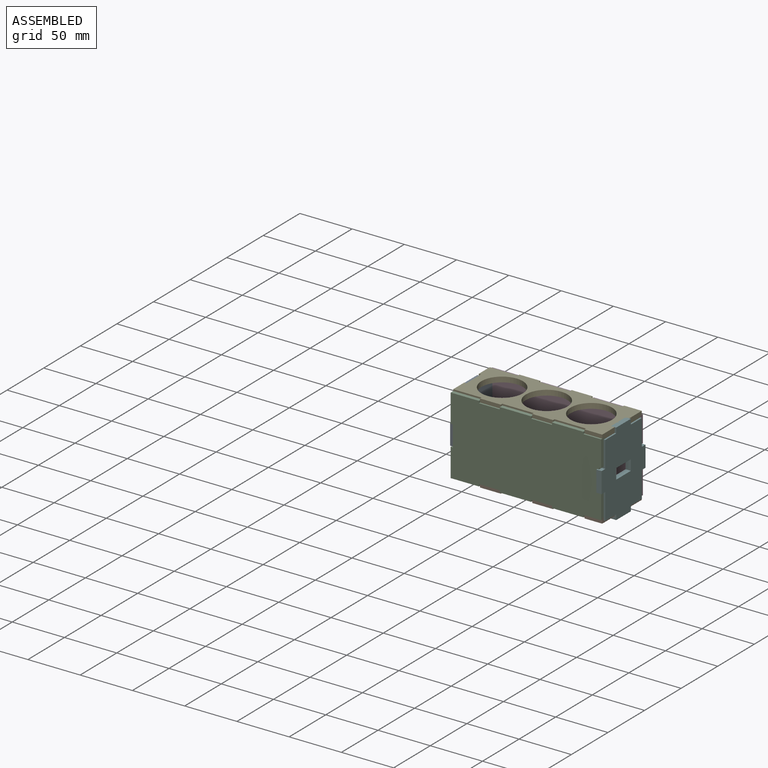
[diagram: assembled view]
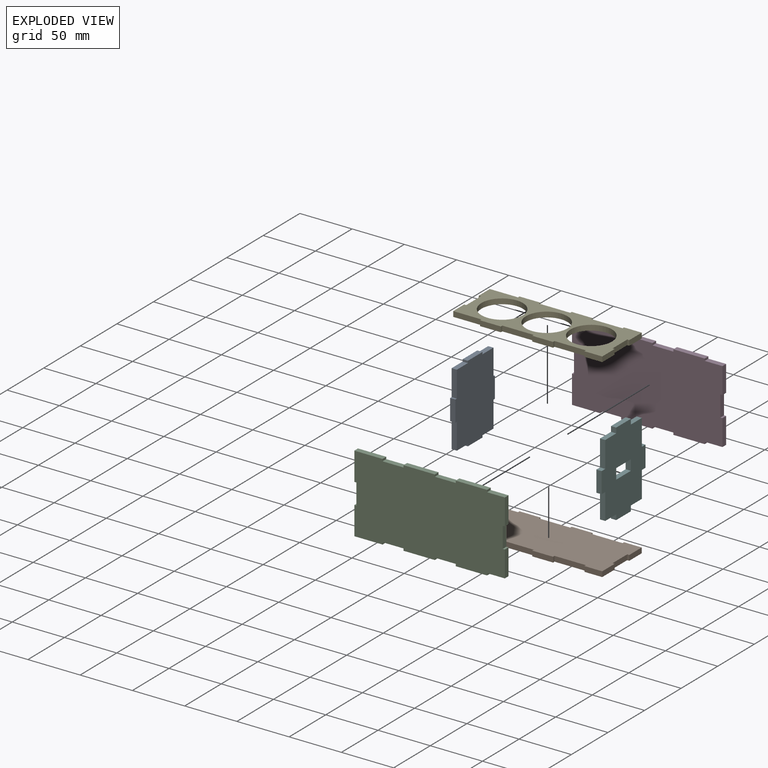
[diagram: exploded view]
GUIDED TOUR — MATED ASSEMBLY (Onshape document 838ae28858e6cbb6a71a05e3, AutoMate assembly 838ae28858e6cbb6a71a05e3_f574cbf1da23f72e12325b11_8fa5516414d45870af5f2d03_default)

This assembly has 6 components, labeled P0..P5 below (a component is one placed occurrence of a part; the same part can appear more than once), held together by 5 mates. A mate is a constraint between two components; its type names the relative motion it leaves free:
  FASTENED — locks the two components together rigidly (no relative motion).
Axis/direction vectors are unit vectors and 'through' points are millimeter coordinates, both in the assembly's world frame.

MATES
  1. FASTENED "Fastened 2": P3 <-> P4, direction (1.000, 0.000, 0.000) through (-182.64, 81.75, 118.68) mm
  2. FASTENED "Fastened 4": P0 <-> P3, direction (0.000, 0.000, -1.000) through (-208.64, 81.75, 72.68) mm
  3. FASTENED "Fastened 5": P5 <-> P4, direction (0.000, 1.000, 0.000) through (-66.64, 65.75, 118.68) mm
  4. FASTENED "Fastened 1": P4 <-> P2, direction (-1.000, 0.000, 0.000) through (-182.64, 29.75, 118.68) mm
  5. FASTENED "Fastened 3": P1 <-> P3, direction (-1.000, 0.000, 0.000) through (-182.64, 81.75, 46.68) mm

ASSEMBLY ORDER
  1. P5 — the base component [order verified]
  2. P0 [order verified]
  3. P1 [order verified]
  4. P3 [order verified]
  5. P2 [order verified]
  6. P4 [order verified]
Order-tag legend:
  [order verified] — this step's position reverses a verified removal order: the component was checked to insert without passing through the ones already placed.

Of the 6 components, 6 carry the full construction recipe — the FeatureScript program that regenerates the part's solid from scratch; the rest are supplied as boundary geometry only.
Each toured component is shown spotlighted twice — in the assembled view, then in the exploded view, where a leader line traces a displaced component back to its assembled socket (saturated green if recipe-attached, orange if geometry-only; every other component desaturated gray) — followed by its recipe or geometry summary and the mates that hold it.
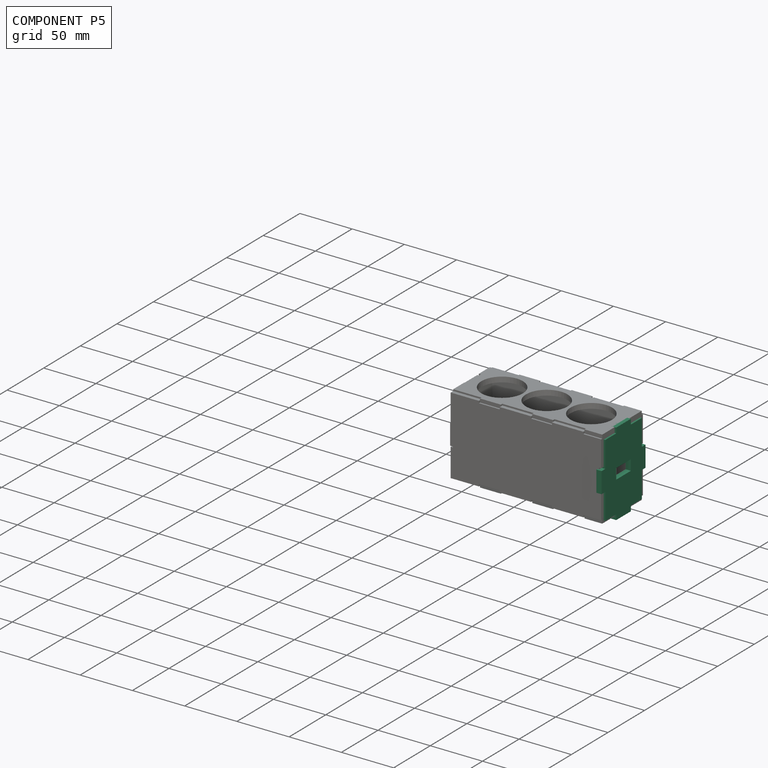
[diagram: component P5 — assembled]
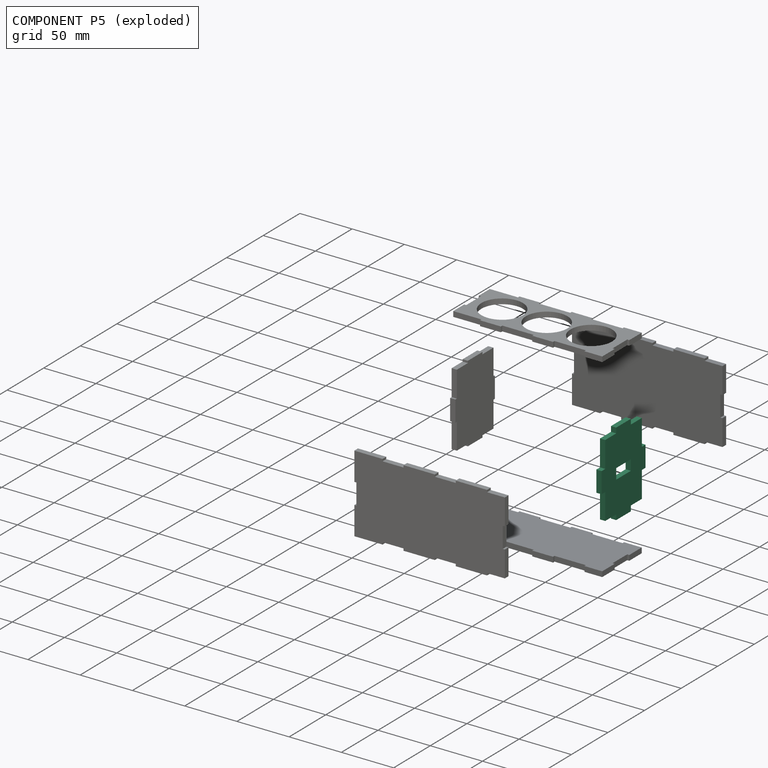
[diagram: component P5 — exploded]
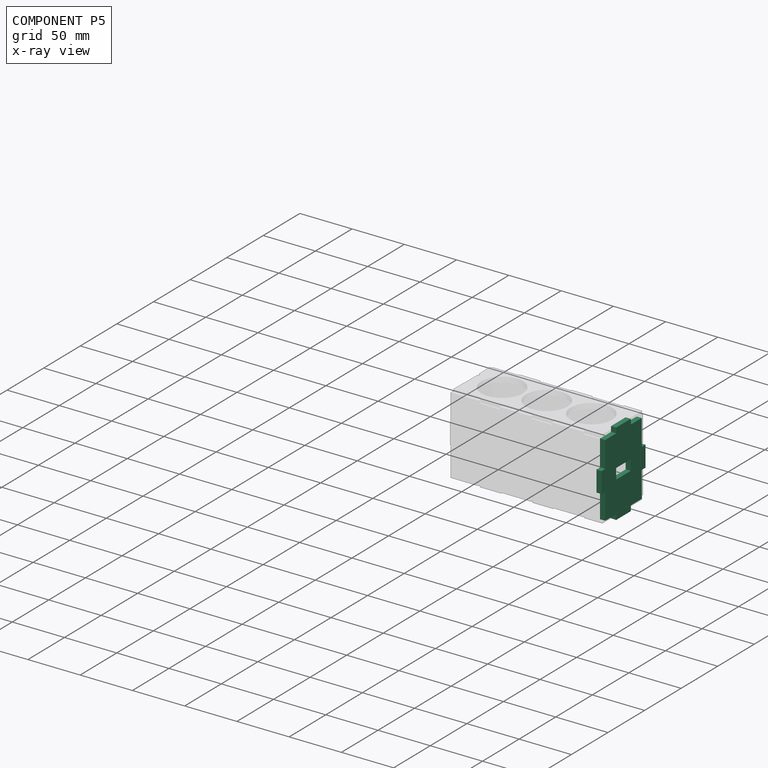
[diagram: component P5 — x-ray view]
COMPONENT P5 — recipe-attached (CADFS 00856404, mesh-verified: the recipe's output STEP matches this component's geometry to below the mesh-comparison resolution (tessellation chordal tolerance ~0.15 mm)).
Held by: FASTENED mate "Fastened 5" to P4.
Construction recipe (FeatureScript — the CAD program that rebuilds this solid; sketch coordinates are in the units given by the * unit suffixes, e.g. mm):

FeatureScript 1511;
import(path : "onshape/std/geometry.fs", version : "1511.0");
import(path : "onshape/std/common.fs", version : "1511.0");
const mm = millimeter;
const VERTEX = EntityType.VERTEX;
const EDGE = EntityType.EDGE;
const FACE = EntityType.FACE;
const BODY = EntityType.BODY;
function v(x, y){return vector(x, y);}
function OD(order){return orderDisambiguation(order);}
function OSD(set){return originalSetDisambiguation(set);}
function TD(topology){return topologyDisambiguation(topology);}
function TDD(query){return trueDependencyDisambiguation(query);}
function sQuery(a, b, c) {return sketchEntityQuery(a, b, c);}

annotation { "Feature Type Name" : "Feature", "Feature Type Description" : "" }
export const myFeature = defineFeature(function(context is Context, id is Id, definition is map)
    precondition{}
    {
        {
            var Q0;
            Q0=qCreatedBy(makeId("Front.planeOp"),FACE);
            var sketch = newSketch(context, id + "F0", { "sketchPlane" : qUnion([Q0])});
            skLineSegment(sketch, "E0", {"start": v(0, 0) * mm, "end": v(0, 25) * mm});
            skLineSegment(sketch, "E1", {"start": v(0, 25) * mm, "end": v(-5, 25) * mm});
            skLineSegment(sketch, "E2", {"start": v(-5, 25) * mm, "end": v(-5, 45) * mm});
            skLineSegment(sketch, "E3", {"start": v(-5, 45) * mm, "end": v(0, 45) * mm});
            skLineSegment(sketch, "E4", {"start": v(0, 45) * mm, "end": v(0, 70) * mm});
            skLineSegment(sketch, "E5", {"start": v(0, 70) * mm, "end": v(15, 70) * mm});
            skLineSegment(sketch, "E6", {"start": v(15, 70) * mm, "end": v(15, 75) * mm});
            skLineSegment(sketch, "E7", {"start": v(15, 75) * mm, "end": v(35, 75) * mm});
            skLineSegment(sketch, "E8", {"start": v(35, 75) * mm, "end": v(35, 70) * mm});
            skLineSegment(sketch, "E9", {"start": v(35, 70) * mm, "end": v(50, 70) * mm});
            skLineSegment(sketch, "E10", {"start": v(50, 70) * mm, "end": v(50, 45) * mm});
            skLineSegment(sketch, "E11", {"start": v(50, 45) * mm, "end": v(55, 45) * mm});
            skLineSegment(sketch, "E12", {"start": v(55, 45) * mm, "end": v(55, 25) * mm});
            skLineSegment(sketch, "E13", {"start": v(55, 25) * mm, "end": v(50, 25) * mm});
            skLineSegment(sketch, "E14", {"start": v(50, 25) * mm, "end": v(50, 0) * mm});
            skLineSegment(sketch, "E15", {"start": v(50, 0) * mm, "end": v(35, 0) * mm});
            skLineSegment(sketch, "E16", {"start": v(35, 0) * mm, "end": v(35, -5) * mm});
            skLineSegment(sketch, "E17", {"start": v(35, -5) * mm, "end": v(15, -5) * mm});
            skLineSegment(sketch, "E18", {"start": v(15, -5) * mm, "end": v(15, 0) * mm});
            skLineSegment(sketch, "E19", {"start": v(15, 0) * mm, "end": v(0, 0) * mm});
            skSolve(sketch);
        }
        {
            var Q0;
            Q0=makeQuery(id+"F0.imprint","IMPRINT",FACE,{"disambiguationData":[TD([[makeQuery(id+"F0.imprint","IMPRINT",EDGE,{"derivedFrom":sQuery(id+"F0.wireOp",EDGE,"E0")}),-1.0]])]});
            extrude(context, id + "F1", {"entities" : qUnion([Q0]), "depth" : 5 * mm});
        }
        {
            var Q0;
            Q0=makeQuery(id+"F1.opExtrude","CAP_FACE",FACE,{"disambiguationData":[OSD([sQuery(id+"F0.wireOp",EDGE,"E0"),sQuery(id+"F0.wireOp",EDGE,"E1"),sQuery(id+"F0.wireOp",EDGE,"E2"),sQuery(id+"F0.wireOp",EDGE,"E3"),sQuery(id+"F0.wireOp",EDGE,"E4"),sQuery(id+"F0.wireOp",EDGE,"E5"),sQuery(id+"F0.wireOp",EDGE,"E6"),sQuery(id+"F0.wireOp",EDGE,"E7"),sQuery(id+"F0.wireOp",EDGE,"E8"),sQuery(id+"F0.wireOp",EDGE,"E9"),sQuery(id+"F0.wireOp",EDGE,"E10"),sQuery(id+"F0.wireOp",EDGE,"E11"),sQuery(id+"F0.wireOp",EDGE,"E12"),sQuery(id+"F0.wireOp",EDGE,"E13"),sQuery(id+"F0.wireOp",EDGE,"E14"),sQuery(id+"F0.wireOp",EDGE,"E15"),sQuery(id+"F0.wireOp",EDGE,"E16"),sQuery(id+"F0.wireOp",EDGE,"E17"),sQuery(id+"F0.wireOp",EDGE,"E18"),sQuery(id+"F0.wireOp",EDGE,"E19")])],"isStart":false});
            var sketch = newSketch(context, id + "F2", { "sketchPlane" : qUnion([Q0])});
            skLineSegment(sketch, "E20.bottom", {"start": v(15, 40) * mm, "end": v(35, 40) * mm});
            skLineSegment(sketch, "E20.top", {"start": v(15, 30) * mm, "end": v(35, 30) * mm});
            skLineSegment(sketch, "E20.left", {"start": v(15, 40) * mm, "end": v(15, 30) * mm});
            skLineSegment(sketch, "E20.right", {"start": v(35, 40) * mm, "end": v(35, 30) * mm});
            skSolve(sketch);
        }
        {
            var Q0;
            Q0=makeQuery(id+"F2.imprint","IMPRINT",FACE,{"disambiguationData":[TD([[makeQuery(id+"F2.imprint","IMPRINT",EDGE,{"derivedFrom":sQuery(id+"F2.wireOp",EDGE,"E20.bottom")}),-1.0]])]});
            extrude(context, id + "F3", {"entities" : qUnion([Q0]), "operationType" : NewBodyOperationType.REMOVE, "oppositeDirection" : true, "depth" : 25 * mm});
        }
    });
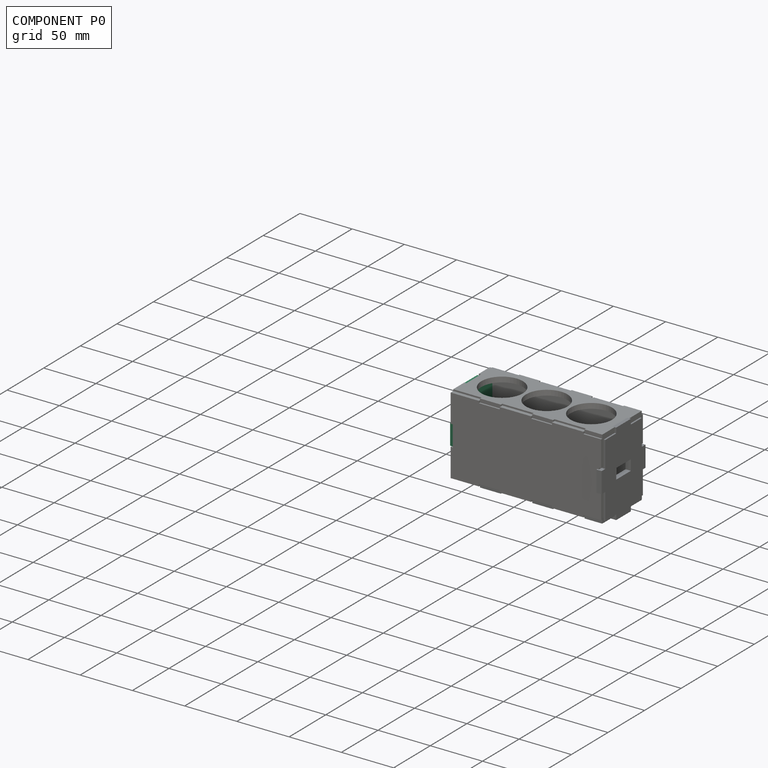
[diagram: component P0 — assembled]
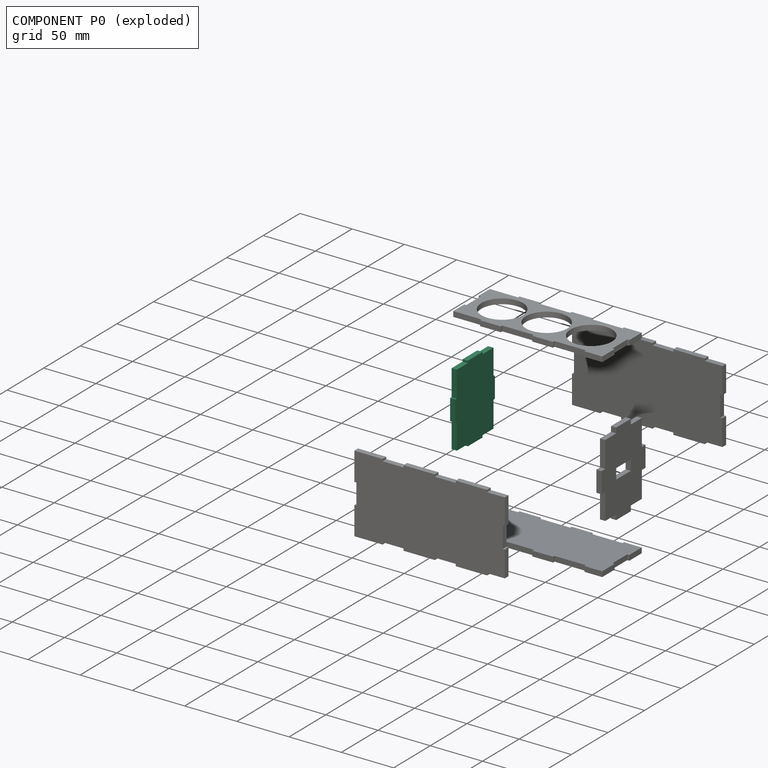
[diagram: component P0 — exploded]
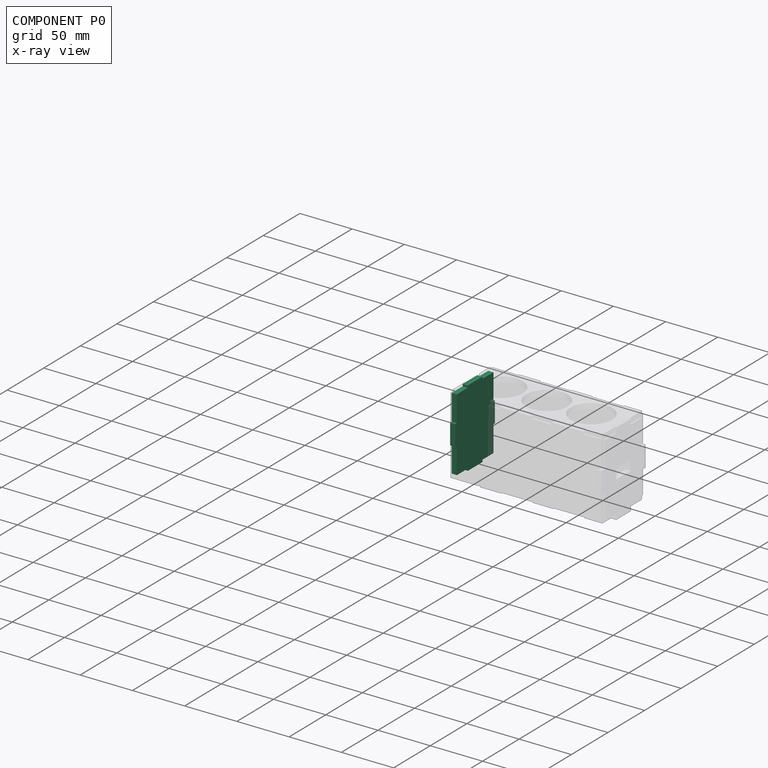
[diagram: component P0 — x-ray view]
COMPONENT P0 — recipe-attached (CADFS 00856403, mesh-verified: the recipe's output STEP matches this component's geometry to below the mesh-comparison resolution (tessellation chordal tolerance ~0.138 mm)).
Held by: FASTENED mate "Fastened 4" to P3.
Construction recipe (FeatureScript — the CAD program that rebuilds this solid; sketch coordinates are in the units given by the * unit suffixes, e.g. mm):

FeatureScript 1511;
import(path : "onshape/std/geometry.fs", version : "1511.0");
import(path : "onshape/std/common.fs", version : "1511.0");
const mm = millimeter;
const VERTEX = EntityType.VERTEX;
const EDGE = EntityType.EDGE;
const FACE = EntityType.FACE;
const BODY = EntityType.BODY;
function v(x, y){return vector(x, y);}
function OD(order){return orderDisambiguation(order);}
function OSD(set){return originalSetDisambiguation(set);}
function TD(topology){return topologyDisambiguation(topology);}
function TDD(query){return trueDependencyDisambiguation(query);}
function sQuery(a, b, c) {return sketchEntityQuery(a, b, c);}

annotation { "Feature Type Name" : "Feature", "Feature Type Description" : "" }
export const myFeature = defineFeature(function(context is Context, id is Id, definition is map)
    precondition{}
    {
        {
            var Q0;
            Q0=qCreatedBy(makeId("Front.planeOp"),FACE);
            var sketch = newSketch(context, id + "F0", { "sketchPlane" : qUnion([Q0])});
            skLineSegment(sketch, "E0", {"start": v(0, 0) * mm, "end": v(0, 25) * mm});
            skLineSegment(sketch, "E1", {"start": v(0, 25) * mm, "end": v(-2, 25) * mm});
            skLineSegment(sketch, "E2", {"start": v(-2, 25) * mm, "end": v(-2, 45) * mm});
            skLineSegment(sketch, "E3", {"start": v(-2, 45) * mm, "end": v(0, 45) * mm});
            skLineSegment(sketch, "E4", {"start": v(0, 45) * mm, "end": v(0, 70) * mm});
            skLineSegment(sketch, "E5", {"start": v(0, 70) * mm, "end": v(15, 70) * mm});
            skLineSegment(sketch, "E6", {"start": v(15, 70) * mm, "end": v(15, 72) * mm});
            skLineSegment(sketch, "E7", {"start": v(15, 72) * mm, "end": v(35, 72) * mm});
            skLineSegment(sketch, "E8", {"start": v(35, 72) * mm, "end": v(35, 70) * mm});
            skLineSegment(sketch, "E9", {"start": v(35, 70) * mm, "end": v(50, 70) * mm});
            skLineSegment(sketch, "E10", {"start": v(50, 70) * mm, "end": v(50, 45) * mm});
            skLineSegment(sketch, "E11", {"start": v(50, 45) * mm, "end": v(52, 45) * mm});
            skLineSegment(sketch, "E12", {"start": v(52, 45) * mm, "end": v(52, 25) * mm});
            skLineSegment(sketch, "E13", {"start": v(52, 25) * mm, "end": v(50, 25) * mm});
            skLineSegment(sketch, "E14", {"start": v(50, 25) * mm, "end": v(50, 0) * mm});
            skLineSegment(sketch, "E15", {"start": v(50, 0) * mm, "end": v(35, 0) * mm});
            skLineSegment(sketch, "E16", {"start": v(35, 0) * mm, "end": v(35, -2) * mm});
            skLineSegment(sketch, "E17", {"start": v(35, -2) * mm, "end": v(15, -2) * mm});
            skLineSegment(sketch, "E18", {"start": v(15, -2) * mm, "end": v(15, 0) * mm});
            skLineSegment(sketch, "E19", {"start": v(15, 0) * mm, "end": v(0, 0) * mm});
            skSolve(sketch);
        }
        {
            var Q0;
            Q0=makeQuery(id+"F0.imprint","IMPRINT",FACE,{"disambiguationData":[TD([[makeQuery(id+"F0.imprint","IMPRINT",EDGE,{"derivedFrom":sQuery(id+"F0.wireOp",EDGE,"E0")}),-1.0]])]});
            extrude(context, id + "F1", {"entities" : qUnion([Q0]), "depth" : 5 * mm});
        }
    });
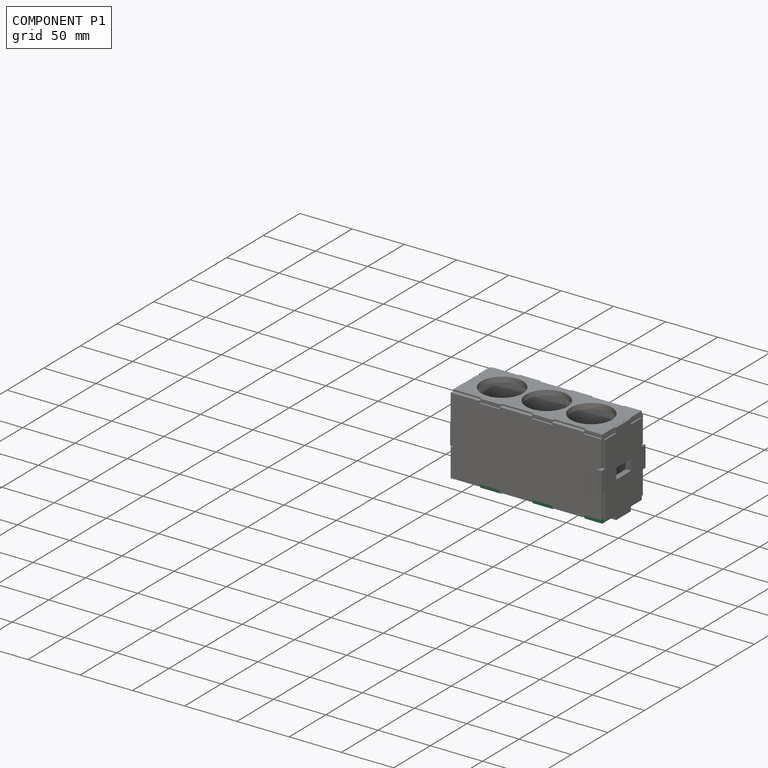
[diagram: component P1 — assembled]
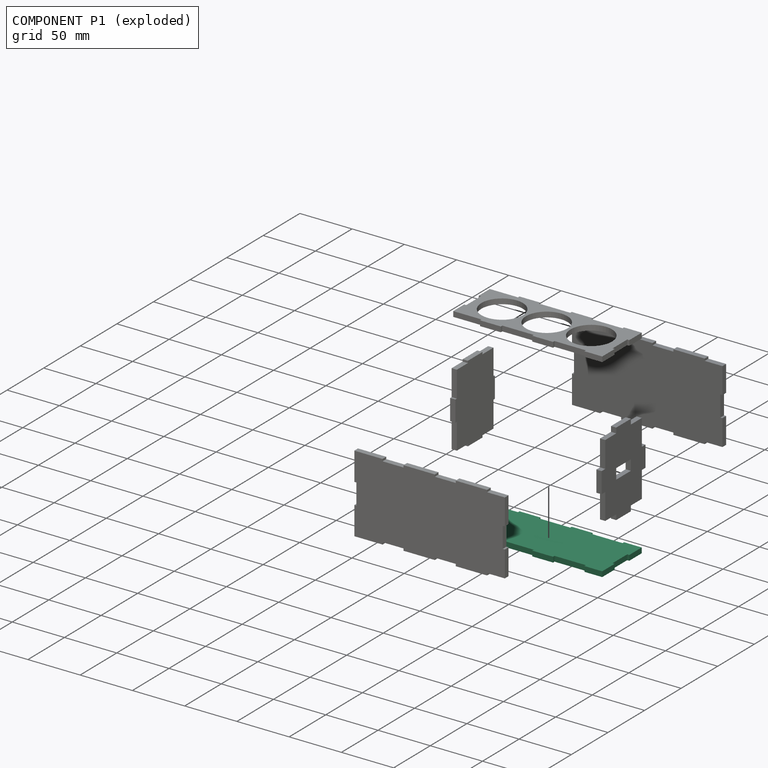
[diagram: component P1 — exploded]
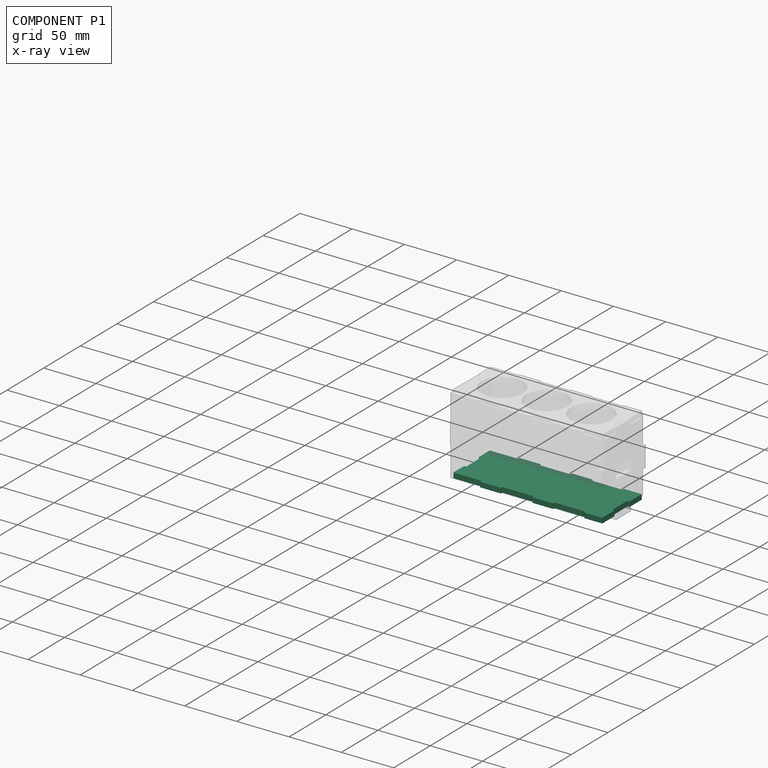
[diagram: component P1 — x-ray view]
COMPONENT P1 — recipe-attached (CADFS 00856402, mesh-verified: the recipe's output STEP matches this component's geometry to below the mesh-comparison resolution (tessellation chordal tolerance ~0.231 mm)).
Held by: FASTENED mate "Fastened 3" to P3.
Construction recipe (FeatureScript — the CAD program that rebuilds this solid; sketch coordinates are in the units given by the * unit suffixes, e.g. mm):

FeatureScript 1511;
import(path : "onshape/std/geometry.fs", version : "1511.0");
import(path : "onshape/std/common.fs", version : "1511.0");
const mm = millimeter;
const VERTEX = EntityType.VERTEX;
const EDGE = EntityType.EDGE;
const FACE = EntityType.FACE;
const BODY = EntityType.BODY;
function v(x, y){return vector(x, y);}
function OD(order){return orderDisambiguation(order);}
function OSD(set){return originalSetDisambiguation(set);}
function TD(topology){return topologyDisambiguation(topology);}
function TDD(query){return trueDependencyDisambiguation(query);}
function sQuery(a, b, c) {return sketchEntityQuery(a, b, c);}

annotation { "Feature Type Name" : "Feature", "Feature Type Description" : "" }
export const myFeature = defineFeature(function(context is Context, id is Id, definition is map)
    precondition{}
    {
        {
            var Q0;
            Q0=qCreatedBy(makeId("Front.planeOp"),FACE);
            var sketch = newSketch(context, id + "F0", { "sketchPlane" : qUnion([Q0])});
            skLineSegment(sketch, "E0", {"start": v(0, 0) * mm, "end": v(0, 15) * mm});
            skLineSegment(sketch, "E1", {"start": v(0, 15) * mm, "end": v(2, 15) * mm});
            skLineSegment(sketch, "E2", {"start": v(2, 15) * mm, "end": v(2, 35) * mm});
            skLineSegment(sketch, "E3", {"start": v(2, 35) * mm, "end": v(0, 35) * mm});
            skLineSegment(sketch, "E4", {"start": v(0, 35) * mm, "end": v(0, 50) * mm});
            skLineSegment(sketch, "E5", {"start": v(0, 50) * mm, "end": v(27, 50) * mm});
            skLineSegment(sketch, "E6", {"start": v(27, 50) * mm, "end": v(27, 52) * mm});
            skLineSegment(sketch, "E7", {"start": v(27, 52) * mm, "end": v(47, 52) * mm});
            skLineSegment(sketch, "E8", {"start": v(47, 52) * mm, "end": v(47, 50) * mm});
            skLineSegment(sketch, "E9", {"start": v(47, 50) * mm, "end": v(77, 50) * mm});
            skLineSegment(sketch, "E10", {"start": v(77, 50) * mm, "end": v(77, 52) * mm});
            skLineSegment(sketch, "E11", {"start": v(77, 52) * mm, "end": v(97, 52) * mm});
            skLineSegment(sketch, "E12", {"start": v(97, 52) * mm, "end": v(97, 50) * mm});
            skLineSegment(sketch, "E13", {"start": v(97, 50) * mm, "end": v(127, 50) * mm});
            skLineSegment(sketch, "E14", {"start": v(127, 50) * mm, "end": v(127, 52) * mm});
            skLineSegment(sketch, "E15", {"start": v(127, 52) * mm, "end": v(144, 52) * mm});
            skLineSegment(sketch, "E16", {"start": v(144, 52) * mm, "end": v(144, 35) * mm});
            skLineSegment(sketch, "E17", {"start": v(144, 35) * mm, "end": v(142, 35) * mm});
            skLineSegment(sketch, "E18", {"start": v(142, 35) * mm, "end": v(142, 15) * mm});
            skLineSegment(sketch, "E19", {"start": v(142, 15) * mm, "end": v(144, 15) * mm});
            skLineSegment(sketch, "E20", {"start": v(144, 15) * mm, "end": v(144, -2) * mm});
            skLineSegment(sketch, "E21", {"start": v(144, -2) * mm, "end": v(127, -2) * mm});
            skLineSegment(sketch, "E22", {"start": v(127, -2) * mm, "end": v(127, 0) * mm});
            skLineSegment(sketch, "E23", {"start": v(127, 0) * mm, "end": v(97, 0) * mm});
            skLineSegment(sketch, "E24", {"start": v(97, 0) * mm, "end": v(97, -2) * mm});
            skLineSegment(sketch, "E25", {"start": v(97, -2) * mm, "end": v(77, -2) * mm});
            skPoint(sketch, "E25.endSnap0", {"position": v(77, 51) * mm});
            skLineSegment(sketch, "E26", {"start": v(77, -2) * mm, "end": v(77, 0) * mm});
            skLineSegment(sketch, "E27", {"start": v(77, 0) * mm, "end": v(47, 0) * mm});
            skLineSegment(sketch, "E28", {"start": v(47, 0) * mm, "end": v(47, -2) * mm});
            skLineSegment(sketch, "E29", {"start": v(47, -2) * mm, "end": v(27, -2) * mm});
            skLineSegment(sketch, "E30", {"start": v(27, -2) * mm, "end": v(27, 0) * mm});
            skLineSegment(sketch, "E31", {"start": v(27, 0) * mm, "end": v(0, 0) * mm});
            skSolve(sketch);
        }
        {
            var Q0;
            Q0=makeQuery(id+"F0.imprint","IMPRINT",FACE,{"disambiguationData":[TD([[makeQuery(id+"F0.imprint","IMPRINT",EDGE,{"derivedFrom":sQuery(id+"F0.wireOp",EDGE,"E0")}),-1.0]])]});
            extrude(context, id + "F1", {"entities" : qUnion([Q0]), "depth" : 5 * mm});
        }
    });
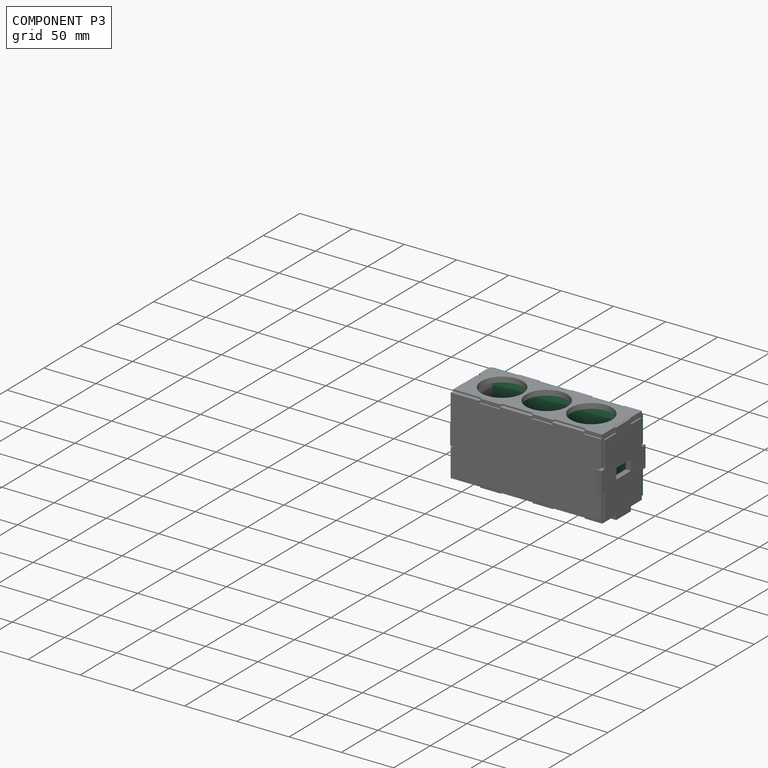
[diagram: component P3 — assembled]
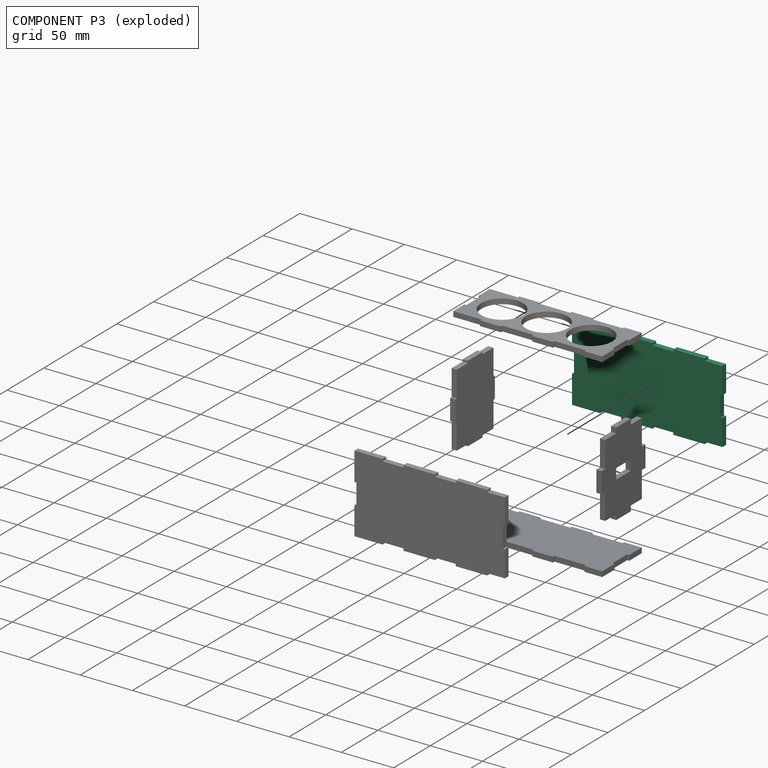
[diagram: component P3 — exploded]
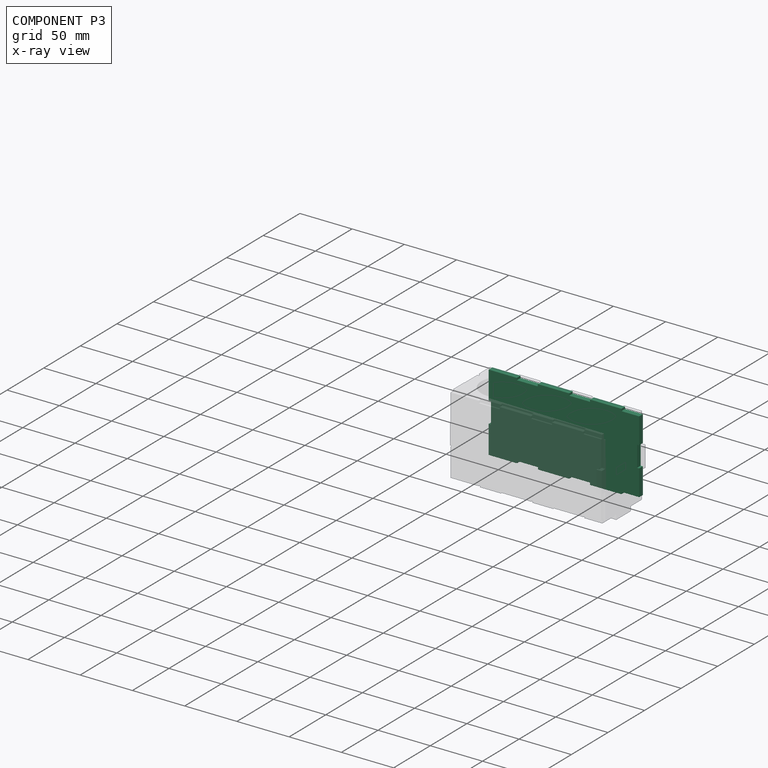
[diagram: component P3 — x-ray view]
COMPONENT P3 — recipe-attached (CADFS 00856400, mesh-verified: the recipe's output STEP matches this component's geometry to below the mesh-comparison resolution (tessellation chordal tolerance ~0.243 mm)).
Held by: FASTENED mate "Fastened 2" to P4; FASTENED mate "Fastened 4" to P0; FASTENED mate "Fastened 3" to P1.
Construction recipe (FeatureScript — the CAD program that rebuilds this solid; sketch coordinates are in the units given by the * unit suffixes, e.g. mm):

FeatureScript 1511;
import(path : "onshape/std/geometry.fs", version : "1511.0");
import(path : "onshape/std/common.fs", version : "1511.0");
const mm = millimeter;
const VERTEX = EntityType.VERTEX;
const EDGE = EntityType.EDGE;
const FACE = EntityType.FACE;
const BODY = EntityType.BODY;
function v(x, y){return vector(x, y);}
function OD(order){return orderDisambiguation(order);}
function OSD(set){return originalSetDisambiguation(set);}
function TD(topology){return topologyDisambiguation(topology);}
function TDD(query){return trueDependencyDisambiguation(query);}
function sQuery(a, b, c) {return sketchEntityQuery(a, b, c);}

annotation { "Feature Type Name" : "Feature", "Feature Type Description" : "" }
export const myFeature = defineFeature(function(context is Context, id is Id, definition is map)
    precondition{}
    {
        {
            var Q0;
            Q0=qCreatedBy(makeId("Front.planeOp"),FACE);
            var sketch = newSketch(context, id + "F0", { "sketchPlane" : qUnion([Q0])});
            skLineSegment(sketch, "E0", {"start": v(0, 0) * mm, "end": v(0, 27) * mm});
            skLineSegment(sketch, "E1", {"start": v(0, 27) * mm, "end": v(2, 27) * mm});
            skLineSegment(sketch, "E2", {"start": v(2, 27) * mm, "end": v(2, 47) * mm});
            skLineSegment(sketch, "E3", {"start": v(2, 47) * mm, "end": v(0, 47) * mm});
            skLineSegment(sketch, "E4", {"start": v(0, 47) * mm, "end": v(0, 74) * mm});
            skLineSegment(sketch, "E5", {"start": v(0, 74) * mm, "end": v(27, 74) * mm});
            skLineSegment(sketch, "E6", {"start": v(27, 74) * mm, "end": v(27, 72) * mm});
            skLineSegment(sketch, "E7", {"start": v(27, 72) * mm, "end": v(47, 72) * mm});
            skLineSegment(sketch, "E8", {"start": v(47, 72) * mm, "end": v(47, 74) * mm});
            skLineSegment(sketch, "E9", {"start": v(47, 74) * mm, "end": v(77, 74) * mm});
            skLineSegment(sketch, "E10", {"start": v(77, 74) * mm, "end": v(77, 72) * mm});
            skLineSegment(sketch, "E11", {"start": v(77, 72) * mm, "end": v(97, 72) * mm});
            skLineSegment(sketch, "E12", {"start": v(97, 72) * mm, "end": v(97, 74) * mm});
            skLineSegment(sketch, "E13", {"start": v(97, 74) * mm, "end": v(127, 74) * mm});
            skLineSegment(sketch, "E14", {"start": v(127, 74) * mm, "end": v(127, 72) * mm});
            skLineSegment(sketch, "E15", {"start": v(127, 72) * mm, "end": v(144, 72) * mm});
            skLineSegment(sketch, "E16", {"start": v(144, 72) * mm, "end": v(144, 47) * mm});
            skLineSegment(sketch, "E17", {"start": v(144, 47) * mm, "end": v(142, 47) * mm});
            skLineSegment(sketch, "E18", {"start": v(142, 47) * mm, "end": v(142, 27) * mm});
            skLineSegment(sketch, "E19", {"start": v(142, 27) * mm, "end": v(144, 27) * mm});
            skLineSegment(sketch, "E20", {"start": v(144, 27) * mm, "end": v(144, 2) * mm});
            skLineSegment(sketch, "E21", {"start": v(144, 2) * mm, "end": v(127, 2) * mm});
            skLineSegment(sketch, "E22", {"start": v(127, 2) * mm, "end": v(127, 0) * mm});
            skLineSegment(sketch, "E23", {"start": v(127, 0) * mm, "end": v(97, 0) * mm});
            skLineSegment(sketch, "E24", {"start": v(97, 0) * mm, "end": v(97, 2) * mm});
            skLineSegment(sketch, "E25", {"start": v(97, 2) * mm, "end": v(77, 2) * mm});
            skLineSegment(sketch, "E26", {"start": v(77, 2) * mm, "end": v(77, 0) * mm});
            skLineSegment(sketch, "E27", {"start": v(77, 0) * mm, "end": v(47, 0) * mm});
            skLineSegment(sketch, "E28", {"start": v(47, 0) * mm, "end": v(47, 2) * mm});
            skLineSegment(sketch, "E29", {"start": v(47, 2) * mm, "end": v(27, 2) * mm});
            skLineSegment(sketch, "E30", {"start": v(27, 2) * mm, "end": v(27, 0) * mm});
            skLineSegment(sketch, "E31", {"start": v(27, 0) * mm, "end": v(0, 0) * mm});
            skSolve(sketch);
        }
        {
            var Q0;
            Q0=makeQuery(id+"F0.imprint","IMPRINT",FACE,{"disambiguationData":[TD([[makeQuery(id+"F0.imprint","IMPRINT",EDGE,{"derivedFrom":sQuery(id+"F0.wireOp",EDGE,"E0")}),-1.0]])]});
            extrude(context, id + "F1", {"entities" : qUnion([Q0]), "depth" : 5 * mm});
        }
    });
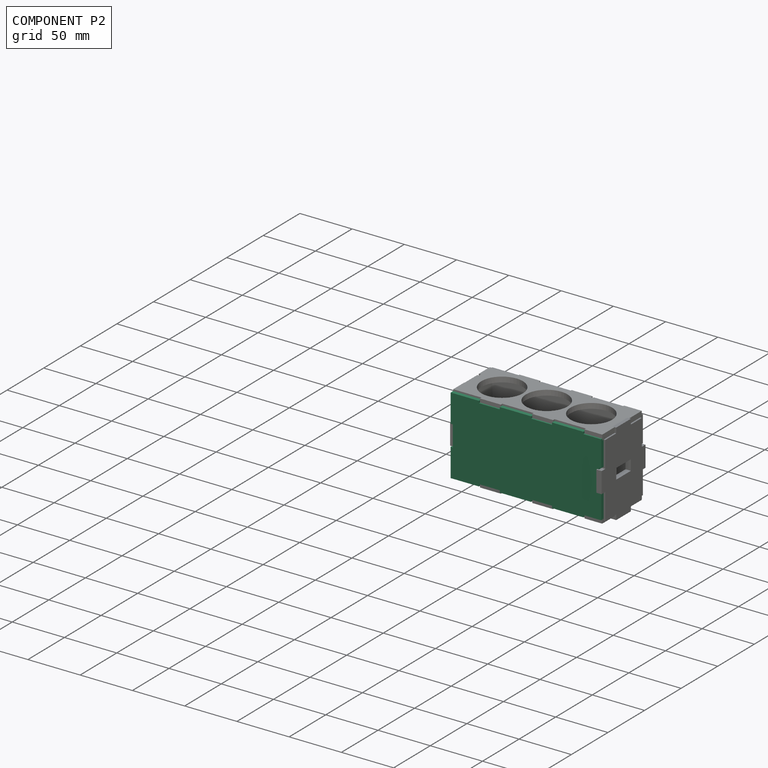
[diagram: component P2 — assembled]
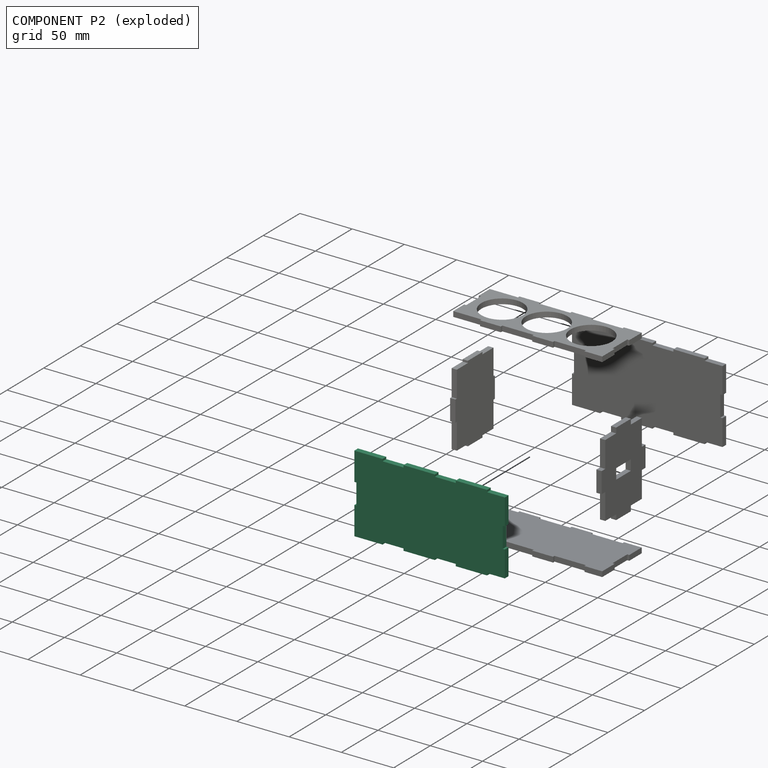
[diagram: component P2 — exploded]
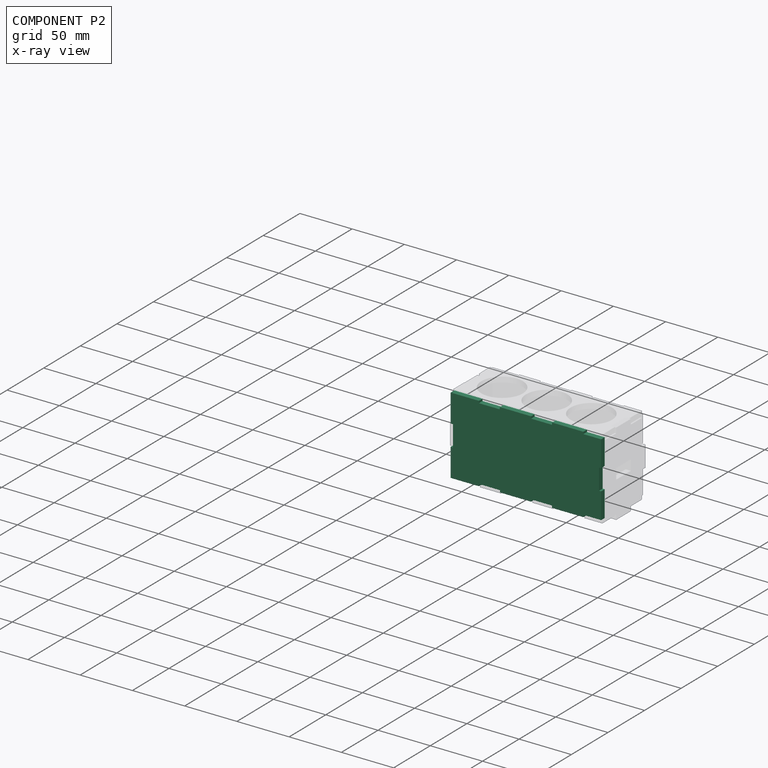
[diagram: component P2 — x-ray view]
COMPONENT P2 — recipe-attached (CADFS 00856400, mesh-verified: the recipe's output STEP matches this component's geometry to below the mesh-comparison resolution (tessellation chordal tolerance ~0.243 mm)).
Held by: FASTENED mate "Fastened 1" to P4.
Construction recipe (FeatureScript — the CAD program that rebuilds this solid; sketch coordinates are in the units given by the * unit suffixes, e.g. mm):

FeatureScript 1511;
import(path : "onshape/std/geometry.fs", version : "1511.0");
import(path : "onshape/std/common.fs", version : "1511.0");
const mm = millimeter;
const VERTEX = EntityType.VERTEX;
const EDGE = EntityType.EDGE;
const FACE = EntityType.FACE;
const BODY = EntityType.BODY;
function v(x, y){return vector(x, y);}
function OD(order){return orderDisambiguation(order);}
function OSD(set){return originalSetDisambiguation(set);}
function TD(topology){return topologyDisambiguation(topology);}
function TDD(query){return trueDependencyDisambiguation(query);}
function sQuery(a, b, c) {return sketchEntityQuery(a, b, c);}

annotation { "Feature Type Name" : "Feature", "Feature Type Description" : "" }
export const myFeature = defineFeature(function(context is Context, id is Id, definition is map)
    precondition{}
    {
        {
            var Q0;
            Q0=qCreatedBy(makeId("Front.planeOp"),FACE);
            var sketch = newSketch(context, id + "F0", { "sketchPlane" : qUnion([Q0])});
            skLineSegment(sketch, "E0", {"start": v(0, 0) * mm, "end": v(0, 27) * mm});
            skLineSegment(sketch, "E1", {"start": v(0, 27) * mm, "end": v(2, 27) * mm});
            skLineSegment(sketch, "E2", {"start": v(2, 27) * mm, "end": v(2, 47) * mm});
            skLineSegment(sketch, "E3", {"start": v(2, 47) * mm, "end": v(0, 47) * mm});
            skLineSegment(sketch, "E4", {"start": v(0, 47) * mm, "end": v(0, 74) * mm});
            skLineSegment(sketch, "E5", {"start": v(0, 74) * mm, "end": v(27, 74) * mm});
            skLineSegment(sketch, "E6", {"start": v(27, 74) * mm, "end": v(27, 72) * mm});
            skLineSegment(sketch, "E7", {"start": v(27, 72) * mm, "end": v(47, 72) * mm});
            skLineSegment(sketch, "E8", {"start": v(47, 72) * mm, "end": v(47, 74) * mm});
            skLineSegment(sketch, "E9", {"start": v(47, 74) * mm, "end": v(77, 74) * mm});
            skLineSegment(sketch, "E10", {"start": v(77, 74) * mm, "end": v(77, 72) * mm});
            skLineSegment(sketch, "E11", {"start": v(77, 72) * mm, "end": v(97, 72) * mm});
            skLineSegment(sketch, "E12", {"start": v(97, 72) * mm, "end": v(97, 74) * mm});
            skLineSegment(sketch, "E13", {"start": v(97, 74) * mm, "end": v(127, 74) * mm});
            skLineSegment(sketch, "E14", {"start": v(127, 74) * mm, "end": v(127, 72) * mm});
            skLineSegment(sketch, "E15", {"start": v(127, 72) * mm, "end": v(144, 72) * mm});
            skLineSegment(sketch, "E16", {"start": v(144, 72) * mm, "end": v(144, 47) * mm});
            skLineSegment(sketch, "E17", {"start": v(144, 47) * mm, "end": v(142, 47) * mm});
            skLineSegment(sketch, "E18", {"start": v(142, 47) * mm, "end": v(142, 27) * mm});
            skLineSegment(sketch, "E19", {"start": v(142, 27) * mm, "end": v(144, 27) * mm});
            skLineSegment(sketch, "E20", {"start": v(144, 27) * mm, "end": v(144, 2) * mm});
            skLineSegment(sketch, "E21", {"start": v(144, 2) * mm, "end": v(127, 2) * mm});
            skLineSegment(sketch, "E22", {"start": v(127, 2) * mm, "end": v(127, 0) * mm});
            skLineSegment(sketch, "E23", {"start": v(127, 0) * mm, "end": v(97, 0) * mm});
            skLineSegment(sketch, "E24", {"start": v(97, 0) * mm, "end": v(97, 2) * mm});
            skLineSegment(sketch, "E25", {"start": v(97, 2) * mm, "end": v(77, 2) * mm});
            skLineSegment(sketch, "E26", {"start": v(77, 2) * mm, "end": v(77, 0) * mm});
            skLineSegment(sketch, "E27", {"start": v(77, 0) * mm, "end": v(47, 0) * mm});
            skLineSegment(sketch, "E28", {"start": v(47, 0) * mm, "end": v(47, 2) * mm});
            skLineSegment(sketch, "E29", {"start": v(47, 2) * mm, "end": v(27, 2) * mm});
            skLineSegment(sketch, "E30", {"start": v(27, 2) * mm, "end": v(27, 0) * mm});
            skLineSegment(sketch, "E31", {"start": v(27, 0) * mm, "end": v(0, 0) * mm});
            skSolve(sketch);
        }
        {
            var Q0;
            Q0=makeQuery(id+"F0.imprint","IMPRINT",FACE,{"disambiguationData":[TD([[makeQuery(id+"F0.imprint","IMPRINT",EDGE,{"derivedFrom":sQuery(id+"F0.wireOp",EDGE,"E0")}),-1.0]])]});
            extrude(context, id + "F1", {"entities" : qUnion([Q0]), "depth" : 5 * mm});
        }
    });
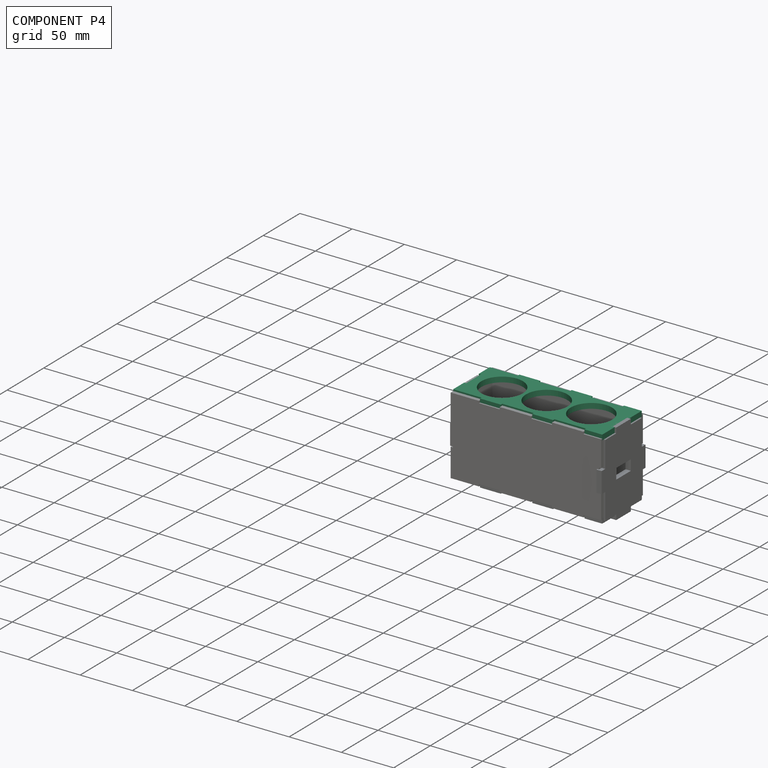
[diagram: component P4 — assembled]
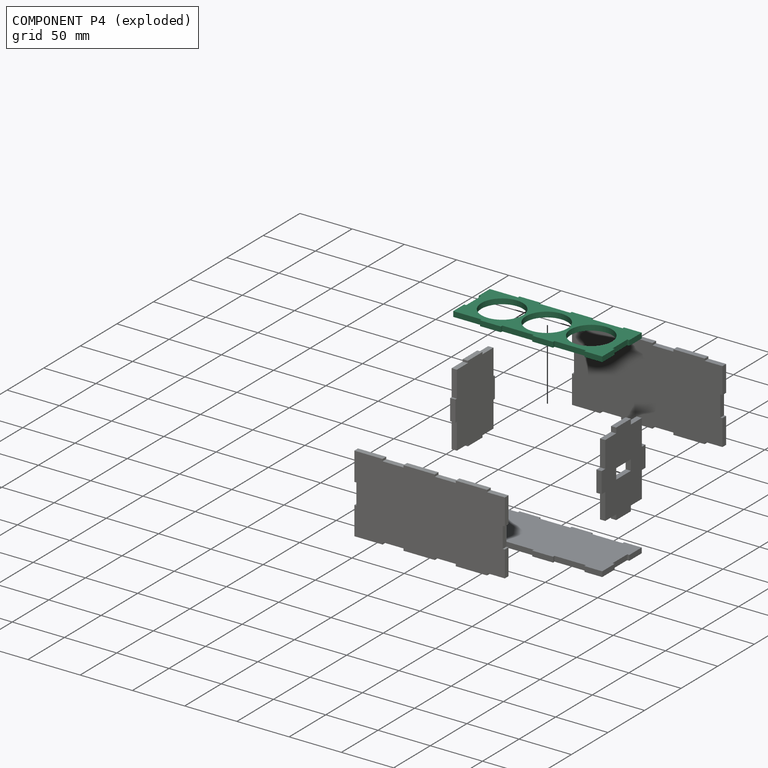
[diagram: component P4 — exploded]
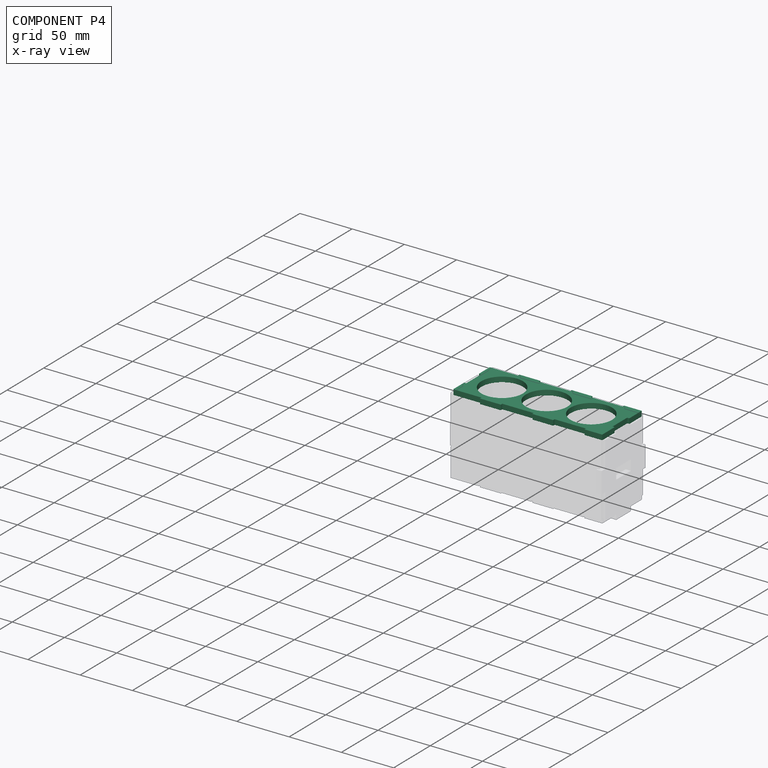
[diagram: component P4 — x-ray view]
COMPONENT P4 — recipe-attached (CADFS 00856406, mesh-verified: the recipe's output STEP matches this component's geometry to below the mesh-comparison resolution (tessellation chordal tolerance ~0.231 mm)).
Held by: FASTENED mate "Fastened 2" to P3; FASTENED mate "Fastened 5" to P5; FASTENED mate "Fastened 1" to P2.
Construction recipe (FeatureScript — the CAD program that rebuilds this solid; sketch coordinates are in the units given by the * unit suffixes, e.g. mm):

FeatureScript 1511;
import(path : "onshape/std/geometry.fs", version : "1511.0");
import(path : "onshape/std/common.fs", version : "1511.0");
const mm = millimeter;
const VERTEX = EntityType.VERTEX;
const EDGE = EntityType.EDGE;
const FACE = EntityType.FACE;
const BODY = EntityType.BODY;
function v(x, y){return vector(x, y);}
function OD(order){return orderDisambiguation(order);}
function OSD(set){return originalSetDisambiguation(set);}
function TD(topology){return topologyDisambiguation(topology);}
function TDD(query){return trueDependencyDisambiguation(query);}
function sQuery(a, b, c) {return sketchEntityQuery(a, b, c);}

annotation { "Feature Type Name" : "Feature", "Feature Type Description" : "" }
export const myFeature = defineFeature(function(context is Context, id is Id, definition is map)
    precondition{}
    {
        {
            var Q0;
            Q0=qCreatedBy(makeId("Front.planeOp"),FACE);
            var sketch = newSketch(context, id + "F0", { "sketchPlane" : qUnion([Q0])});
            skLineSegment(sketch, "E0", {"start": v(0, 0) * mm, "end": v(27, 0) * mm});
            skLineSegment(sketch, "E1", {"start": v(27, 0) * mm, "end": v(27, -2) * mm});
            skLineSegment(sketch, "E2", {"start": v(27, -2) * mm, "end": v(47, -2) * mm});
            skLineSegment(sketch, "E3", {"start": v(47, -2) * mm, "end": v(47, 0) * mm});
            skLineSegment(sketch, "E4", {"start": v(47, 0) * mm, "end": v(77, 0) * mm});
            skLineSegment(sketch, "E5", {"start": v(77, 0) * mm, "end": v(77, -2) * mm});
            skLineSegment(sketch, "E6", {"start": v(77, -2) * mm, "end": v(97, -2) * mm});
            skLineSegment(sketch, "E7", {"start": v(97, -2) * mm, "end": v(97, 0) * mm});
            skLineSegment(sketch, "E8", {"start": v(97, 0) * mm, "end": v(127, 0) * mm});
            skLineSegment(sketch, "E9", {"start": v(127, 0) * mm, "end": v(127, -2) * mm});
            skLineSegment(sketch, "E10", {"start": v(127, -2) * mm, "end": v(144, -2) * mm});
            skLineSegment(sketch, "E11", {"start": v(144, -2) * mm, "end": v(144, 15) * mm});
            skLineSegment(sketch, "E12", {"start": v(144, 15) * mm, "end": v(142, 15) * mm});
            skLineSegment(sketch, "E13", {"start": v(142, 15) * mm, "end": v(142, 35) * mm});
            skLineSegment(sketch, "E14", {"start": v(142, 35) * mm, "end": v(144, 35) * mm});
            skLineSegment(sketch, "E15", {"start": v(144, 35) * mm, "end": v(144, 52) * mm});
            skLineSegment(sketch, "E16", {"start": v(144, 52) * mm, "end": v(127, 52) * mm});
            skLineSegment(sketch, "E17", {"start": v(127, 52) * mm, "end": v(127, 50) * mm});
            skLineSegment(sketch, "E18", {"start": v(127, 50) * mm, "end": v(97, 50) * mm});
            skLineSegment(sketch, "E19", {"start": v(97, 50) * mm, "end": v(97, 52) * mm});
            skLineSegment(sketch, "E20", {"start": v(97, 52) * mm, "end": v(77, 52) * mm});
            skLineSegment(sketch, "E21", {"start": v(77, 52) * mm, "end": v(77, 50) * mm});
            skLineSegment(sketch, "E22", {"start": v(77, 50) * mm, "end": v(47, 50) * mm});
            skLineSegment(sketch, "E23", {"start": v(47, 50) * mm, "end": v(47, 52) * mm});
            skLineSegment(sketch, "E24", {"start": v(47, 52) * mm, "end": v(27, 52) * mm});
            skLineSegment(sketch, "E25", {"start": v(27, 52) * mm, "end": v(27, 50) * mm});
            skLineSegment(sketch, "E26", {"start": v(27, 50) * mm, "end": v(0, 50) * mm});
            skLineSegment(sketch, "E27", {"start": v(0, 50) * mm, "end": v(0, 35) * mm});
            skLineSegment(sketch, "E28", {"start": v(0, 35) * mm, "end": v(2, 35) * mm});
            skLineSegment(sketch, "E29", {"start": v(2, 35) * mm, "end": v(2, 15) * mm});
            skLineSegment(sketch, "E30", {"start": v(2, 15) * mm, "end": v(0, 15) * mm});
            skLineSegment(sketch, "E31", {"start": v(0, 15) * mm, "end": v(0, 0) * mm});
            skSolve(sketch);
        }
        {
            var Q0;
            Q0=makeQuery(id+"F0.imprint","IMPRINT",FACE,{"disambiguationData":[TD([[makeQuery(id+"F0.imprint","IMPRINT",EDGE,{"derivedFrom":sQuery(id+"F0.wireOp",EDGE,"E0")}),1.0]])]});
            extrude(context, id + "F1", {"entities" : qUnion([Q0]), "depth" : 5 * mm});
        }
        {
            var Q0;
            Q0=makeQuery(id+"F1.opExtrude","CAP_FACE",FACE,{"disambiguationData":[OSD([sQuery(id+"F0.wireOp",EDGE,"E0"),sQuery(id+"F0.wireOp",EDGE,"E1"),sQuery(id+"F0.wireOp",EDGE,"E2"),sQuery(id+"F0.wireOp",EDGE,"E3"),sQuery(id+"F0.wireOp",EDGE,"E4"),sQuery(id+"F0.wireOp",EDGE,"E5"),sQuery(id+"F0.wireOp",EDGE,"E6"),sQuery(id+"F0.wireOp",EDGE,"E7"),sQuery(id+"F0.wireOp",EDGE,"E8"),sQuery(id+"F0.wireOp",EDGE,"E9"),sQuery(id+"F0.wireOp",EDGE,"E10"),sQuery(id+"F0.wireOp",EDGE,"E11"),sQuery(id+"F0.wireOp",EDGE,"E12"),sQuery(id+"F0.wireOp",EDGE,"E13"),sQuery(id+"F0.wireOp",EDGE,"E14"),sQuery(id+"F0.wireOp",EDGE,"E15"),sQuery(id+"F0.wireOp",EDGE,"E16"),sQuery(id+"F0.wireOp",EDGE,"E17"),sQuery(id+"F0.wireOp",EDGE,"E18"),sQuery(id+"F0.wireOp",EDGE,"E19"),sQuery(id+"F0.wireOp",EDGE,"E20"),sQuery(id+"F0.wireOp",EDGE,"E21"),sQuery(id+"F0.wireOp",EDGE,"E22"),sQuery(id+"F0.wireOp",EDGE,"E23"),sQuery(id+"F0.wireOp",EDGE,"E24"),sQuery(id+"F0.wireOp",EDGE,"E25"),sQuery(id+"F0.wireOp",EDGE,"E26"),sQuery(id+"F0.wireOp",EDGE,"E27"),sQuery(id+"F0.wireOp",EDGE,"E28"),sQuery(id+"F0.wireOp",EDGE,"E29"),sQuery(id+"F0.wireOp",EDGE,"E30"),sQuery(id+"F0.wireOp",EDGE,"E31")])],"isStart":false});
            var sketch = newSketch(context, id + "F2", { "sketchPlane" : qUnion([Q0])});
            skCircle(sketch, "E32", {"center": v(114.67, 25) * mm, "radius": 19.83 * mm});
            skCircle(sketch, "E33", {"center": v(72, 25) * mm, "radius": 19.83 * mm});
            skCircle(sketch, "E34", {"center": v(29.33, 25) * mm, "radius": 19.83 * mm});
            skPoint(sketch, "E35", {"position": v(142, 25) * mm});
            skSolve(sketch);
        }
        {
            var Q0;
            Q0=makeQuery(id+"F2.imprint","IMPRINT",FACE,{"disambiguationData":[TD([[makeQuery(id+"F2.imprint","IMPRINT",EDGE,{"derivedFrom":sQuery(id+"F2.wireOp",EDGE,"E33")}),1.0]])]});
            var Q1;
            Q1=makeQuery(id+"F2.imprint","IMPRINT",FACE,{"disambiguationData":[TD([[makeQuery(id+"F2.imprint","IMPRINT",EDGE,{"derivedFrom":sQuery(id+"F2.wireOp",EDGE,"E32")}),1.0]])]});
            var Q2;
            Q2=makeQuery(id+"F2.imprint","IMPRINT",FACE,{"disambiguationData":[TD([[makeQuery(id+"F2.imprint","IMPRINT",EDGE,{"derivedFrom":sQuery(id+"F2.wireOp",EDGE,"E34")}),1.0]])]});
            extrude(context, id + "F3", {"entities" : qUnion([Q0, Q1, Q2]), "operationType" : NewBodyOperationType.REMOVE, "oppositeDirection" : true, "depth" : 25 * mm});
        }
    });
PROVENANCE & LICENSES
Assembly (occurrences, transforms, mates, per-part STEP geometry): AutoMate dataset, Zenodo record 7776208, CC0.
Construction recipes: CADFS (HuggingFace VladPyatov/CADFS, CC-BY-4.0, layered over the ABC dataset), FeatureScript reconstruction programs keyed by ABC model id.
Join: ABC meta listings map ABC model id -> Onshape documentId; within a shared document, parts are matched by geometric signature (bounding-box dims + volume at 0.1% relative tolerance, exact B-rep face/solid counts).
Verification: 6 of this assembly's 6 components carry a recipe attachment, and every attachment is mesh-verified: the CADFS STEP and the AutoMate member STEP were compared as meshes in their shared local frame (symmetric sampled-point-to-mesh distance); worst across the 6 attachments: below the mesh-comparison resolution (tessellation chordal tolerance ~0.243 mm) on a 162 mm part.
Renders: orthographic iso camera (az 35 / el 25); the floor grid conveys scale (grid pitch printed in each image; no ruler). In the exploded view each component is displaced by its stored offset vector: the offsets alone carry the explosion direction (mate normal/axis signs are not orientation cues and do not encode it), and separation distances are assigned per mate-chain, not proportionally to assembly-order depth.
